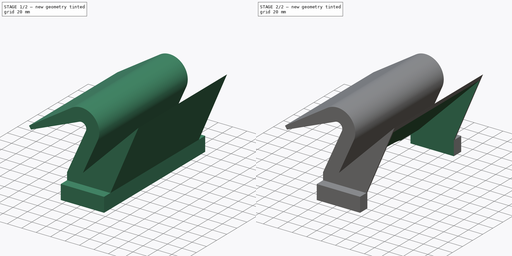
[diagram: build sequence overview — one tinted view per stage of 2, left to right]
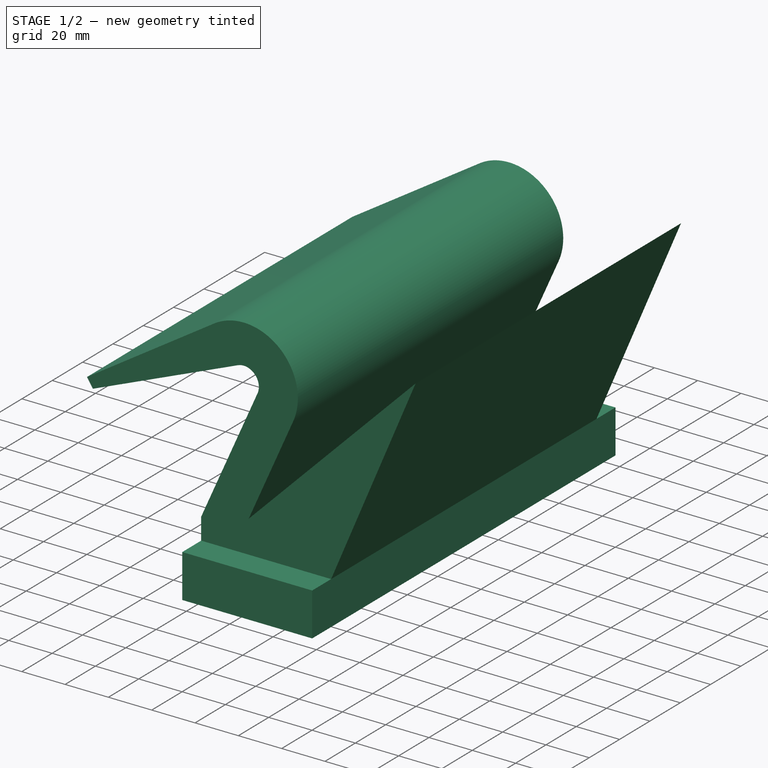
[diagram: stage 1 of 2 — iso view after this stage's code; geometry added in this stage tinted green]
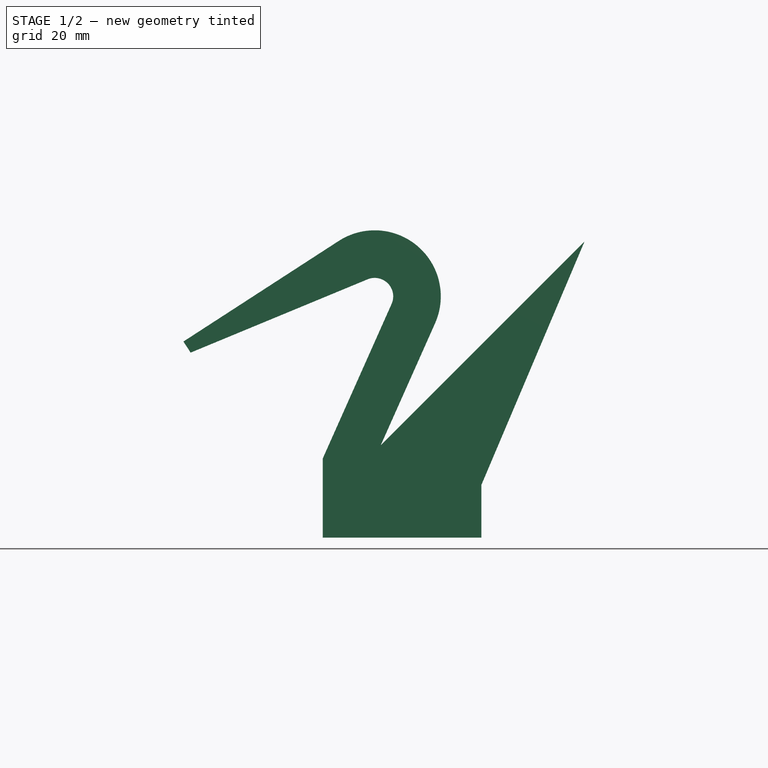
[diagram: stage 1 of 2 — front view after this stage's code; geometry added in this stage tinted green]
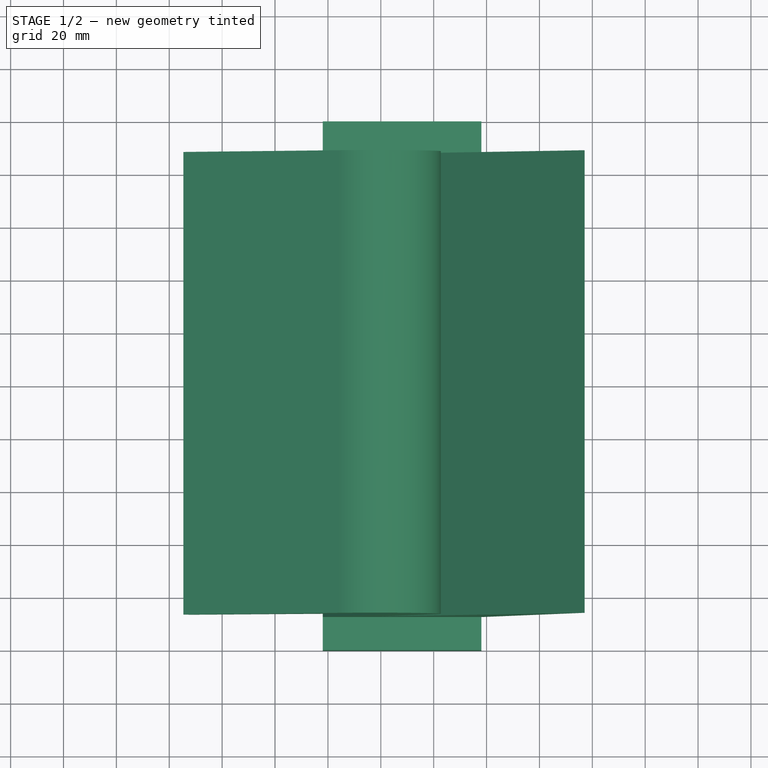
[diagram: stage 1 of 2 — top view after this stage's code; geometry added in this stage tinted green]
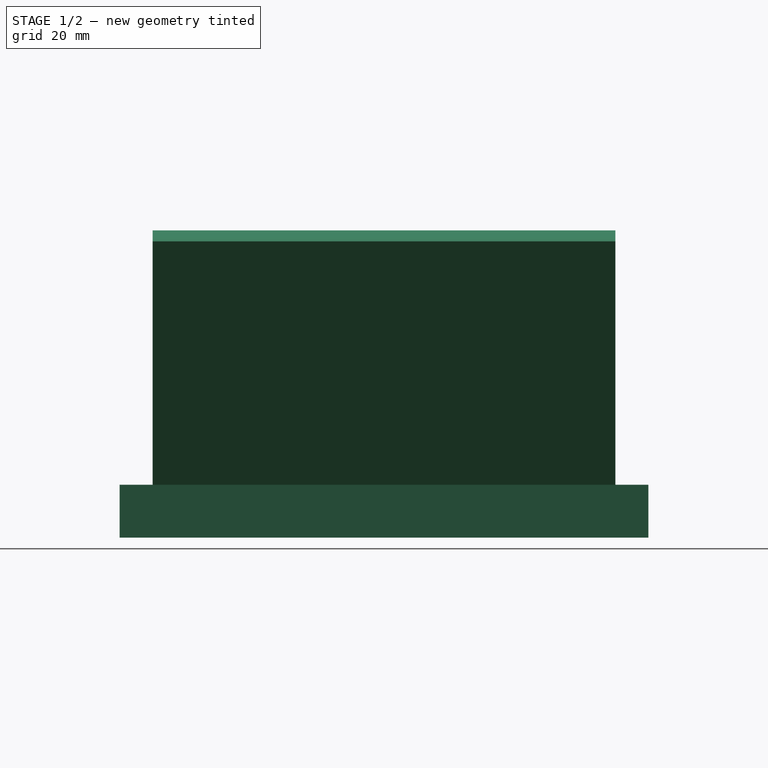
[diagram: stage 1 of 2 — right view after this stage's code; geometry added in this stage tinted green]
FCSTD DOCUMENT  (FreeCAD 0.18R16146 (Git))
Label: Mirror02
License: All rights reserved
LicenseURL: http://en.wikipedia.org/wiki/All_rights_reserved
objects: Sketcher::SketchObject×4, PartDesign::Plane×3, PartDesign::Pad×2, PartDesign::Pocket×2, PartDesign::Body×1, App::Part×1
note: 16 computed .brp shape members not serialized (recipe doc carries the construction recipe); baked Part::Feature solids carry a one-line shape summary decoded from their .brp

FEATURE [Sketcher::SketchObject] Sketch
  MapMode = 5
  Placement = pos=(0,0,0) rot=(1,0,0;1.5708rad)
  Support = -> [XZ_Plane001]
  sketch-geometry (12):
    g0: LineSegment StartX=77.0774 StartY=112.077 StartZ=0 EndX=0 EndY=35 EndZ=0
    g1: LineSegment StartX=0 StartY=35 StartZ=0 EndX=20.5311 EndY=81.091 EndZ=0
    g2: LineSegment StartX=-15.8952 StartY=112.247 StartZ=0 EndX=-74.6502 EndY=74.1968 EndZ=0
    g3: LineSegment StartX=77.0774 StartY=112.077 StartZ=0 EndX=38.0677 EndY=20 EndZ=0
    g4: LineSegment StartX=-74.6502 StartY=74.1968 StartZ=0 EndX=-71.9323 EndY=70 EndZ=0
    g5: LineSegment StartX=-71.9323 StartY=70 StartZ=0 EndX=-4.98448 EndY=97.7307 EndZ=0
    g6: ArcOfCircle CenterX=-2.3057 CenterY=91.2635 CenterZ=0 NormalX=0 NormalY=0 NormalZ=1 AngleXU=0 Radius=25 StartAngle=5.86412 EndAngle=8.42868
    g7: ArcOfCircle CenterX=-2.3057 CenterY=91.2635 CenterZ=0 NormalX=0 NormalY=0 NormalZ=1 AngleXU=0 Radius=7 StartAngle=5.86412 EndAngle=8.24668
    g8: LineSegment StartX=38.0677 StartY=20 StartZ=0 EndX=38.0677 EndY=0 EndZ=0
    g9: LineSegment StartX=38.0677 StartY=0 StartZ=0 EndX=-21.9323 EndY=0 EndZ=0
    g10: LineSegment StartX=-21.9323 StartY=0 StartZ=0 EndX=-21.9323 EndY=30 EndZ=0
    g11: LineSegment StartX=-21.9323 StartY=30 StartZ=0 EndX=4.0886 EndY=88.4152 EndZ=0
  constraints (34):
    c: Coincident(g0,g3)
    c: Coincident(g0,g1)
    c: Tangent(g1,g6) = -1.5708
    c: Tangent(g7,g5) = 1.5708
    c: Tangent(g2,g6) = -1.5708
    c: Coincident(g4,g5)
    c: Coincident(g4,g2)
    c: Perpendicular(g4,g2)
    c: Distance(g4) = 5
    c: Radius(g6) = 25
    c: Radius(g7) = 7
    c: Angle(g6,g-2) = 0.785398
    c: Distance(g2) = 70
    c: Coincident(g3,g8)
    c: PointOnObject(g8,g-1)
    c: Vertical(g8)
    c: Coincident(g8,g9)
    c: PointOnObject(g9,g-1)
    c: Coincident(g9,g10)
    c: Vertical(g10)
    c: Coincident(g10,g11)
    c: Tangent(g11,g7) = -1.5708
    c: DistanceX(g9,g9) = 60
    c: DistanceY(g10,g10) = 30
    c: DistanceY(g3,g0) = 15
    c: DistanceY(g8,g8) = 20
    c: Angle(g-1,g0) = 0.785398
    c: Distance(g3) = 100
    c: Parallel(g1,g11)
    c: Angle(g-1,g5) = 0.392699
    c: Coincident(g7,g6)
    c: DistanceX(g4,g9) = 50
    c: DistanceY(g3,g5) = 50
    c: PointOnObject(g0,g-2)
FEATURE [PartDesign::Plane] DatumPlane
  AttachmentOffset = pos=(0,0,-5) rot=(0,0,1;0rad)
  Length = 237.762
  MapMode = 5
  Placement = pos=(-10.3553,7e-15,10.3553) rot=(-0.382683,0,0.92388;3.14159rad)
  ResizeMode = 0
  Width = 239.796
FEATURE [PartDesign::Pad] Pad
  Length = 175
  Length2 = 100
  Midplane = true
  Placement = pos=(0,0,0) rot=(1,0,0;1.5708rad)
  Profile = -> Sketch
  Type = 0
FEATURE [PartDesign::Plane] DatumPlane001
  AttachmentOffset = pos=(0,0,-3) rot=(0,0,1;0rad)
  Length = 237.762
  MapMode = 5
  Placement = pos=(-15.3787,6.7e-15,15.3787) rot=(-0.382683,0,0.92388;3.14159rad)
  ResizeMode = 0
  Support = -> [Pad]
  Width = 239.796
FEATURE [Sketcher::SketchObject] Sketch001
  ExternalGeometry = -> [Pad]
  MapMode = 5
  Placement = pos=(-15.3787,6.7e-15,15.3787) rot=(-0.382683,0,0.92388;3.14159rad)
  Support = -> [DatumPlane001]
  sketch-geometry (4):
    g0: LineSegment StartX=-133.753 StartY=85.5 StartZ=0 EndX=15.5085 EndY=85.5 EndZ=0
    g1: LineSegment StartX=15.5085 StartY=85.5 StartZ=0 EndX=15.5085 EndY=-85.5 EndZ=0
    g2: LineSegment StartX=15.5085 StartY=-85.5 StartZ=0 EndX=-133.753 EndY=-85.5 EndZ=0
    g3: LineSegment StartX=-133.753 StartY=-85.5 StartZ=0 EndX=-133.753 EndY=85.5 EndZ=0
  constraints (11):
    c: Coincident(g0,g1)
    c: Coincident(g1,g2)
    c: Coincident(g2,g3)
    c: Coincident(g3,g0)
    c: Horizontal(g0)
    c: Horizontal(g2)
    c: Vertical(g1)
    c: PointOnObject(g0,g-5)
    c: PointOnObject(g0,g-6)
    c: DistanceY(g0,g-5) = 2
    c: Symmetric(g0,g2,g-1)
FEATURE [PartDesign::Plane] DatumPlane002
  Length = 181.708
  MapMode = 2
  Placement = pos=(0,0,0) rot=(1,0,0;1.5708rad)
  ResizeMode = 0
  Support = -> [XZ_Plane]
  Width = 153.976
FEATURE [Sketcher::SketchObject] Sketch002
  ExternalGeometry = -> [Pad]
  MapMode = 5
  Placement = pos=(0,0,0) rot=(1,0,0;1.5708rad)
  Support = -> [DatumPlane002]
  sketch-geometry (4):
    g0: LineSegment StartX=-21.9323 StartY=20 StartZ=0 EndX=38.0677 EndY=20 EndZ=0
    g1: LineSegment StartX=38.0677 StartY=20 StartZ=0 EndX=38.0677 EndY=8.999e-12 EndZ=0
    g2: LineSegment StartX=38.0677 StartY=9e-12 StartZ=0 EndX=-21.9323 EndY=9e-12 EndZ=0
    g3: LineSegment StartX=-21.9323 StartY=9e-12 StartZ=0 EndX=-21.9323 EndY=20 EndZ=0
  constraints (10):
    c: Coincident(g0,g1)
    c: Coincident(g1,g2)
    c: Coincident(g2,g3)
    c: Coincident(g3,g0)
    c: Horizontal(g0)
    c: Horizontal(g2)
    c: Vertical(g1)
    c: Vertical(g3)
    c: Coincident(g2,g-4)
    c: Coincident(g0,g-3)
FEATURE [PartDesign::Pad] Pad001
  BaseFeature = -> Pad
  Length = 200
  Length2 = 100
  Midplane = true
  Placement = pos=(0,0,0) rot=(1,0,0;1.5708rad)
  Profile = -> Sketch002
  Type = 0
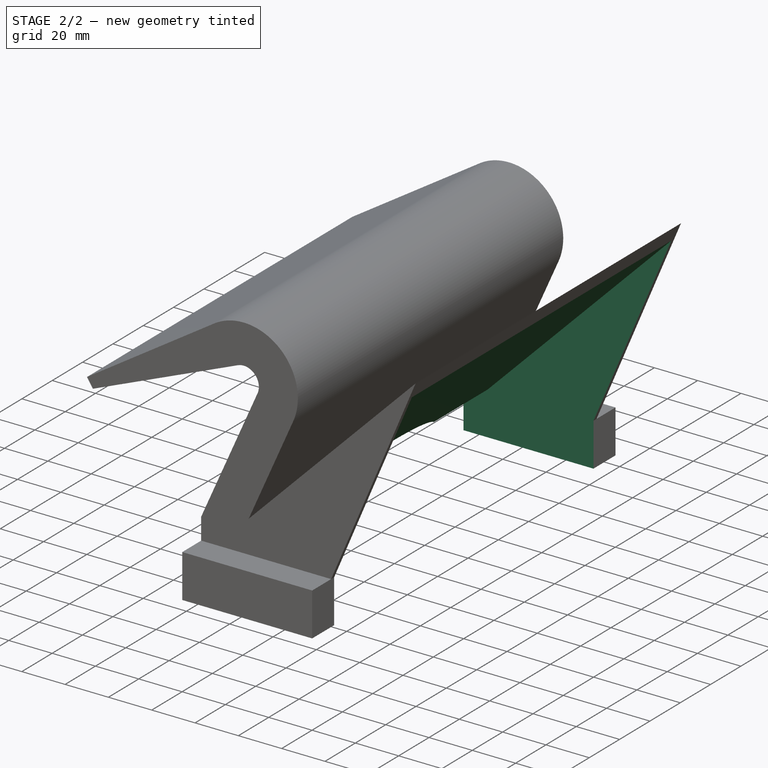
[diagram: stage 2 of 2 — iso view after this stage's code; geometry added in this stage tinted green]
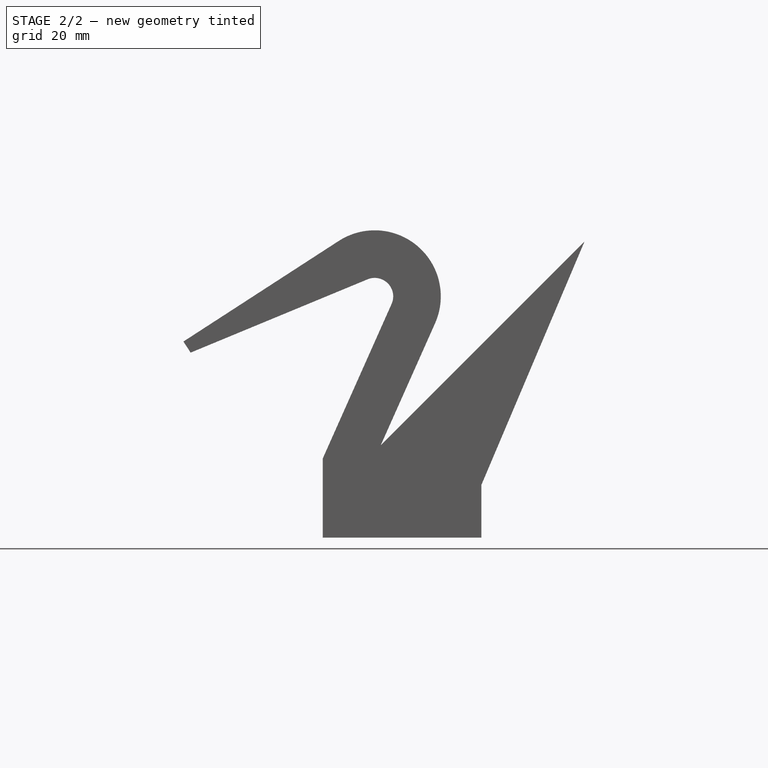
[diagram: stage 2 of 2 — front view after this stage's code; geometry added in this stage tinted green]
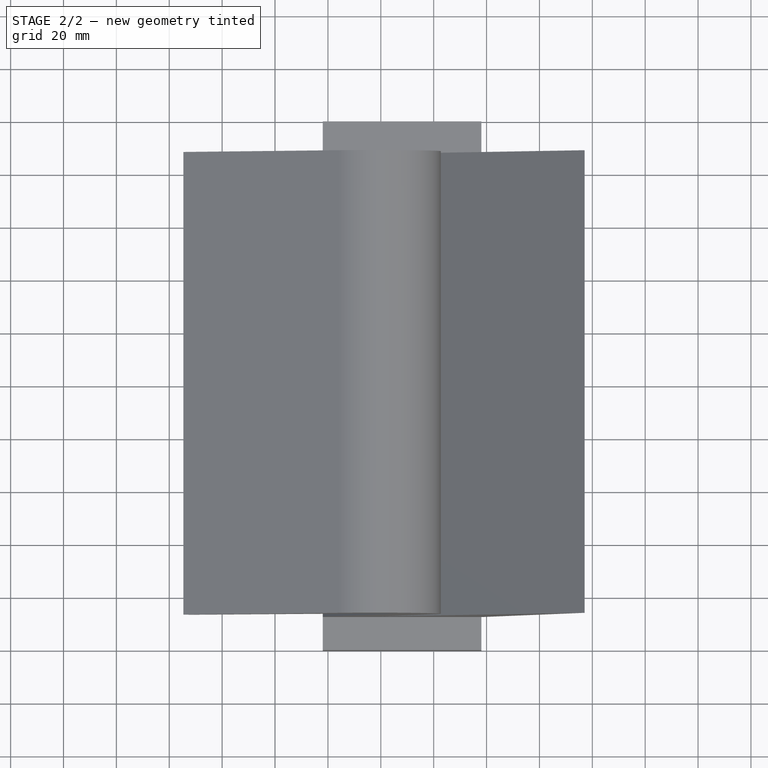
[diagram: stage 2 of 2 — top view after this stage's code; geometry added in this stage tinted green]
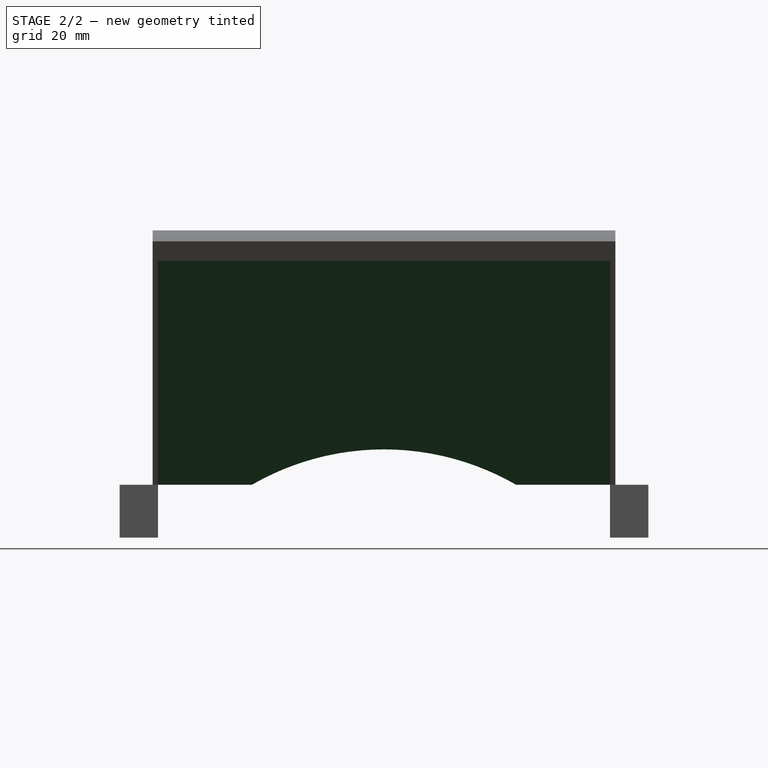
[diagram: stage 2 of 2 — right view after this stage's code; geometry added in this stage tinted green]
FEATURE [PartDesign::Pocket] Pocket
  BaseFeature = -> Pad001
  Length = 5
  Length2 = 100
  Placement = pos=(0,0,0) rot=(1,0,0;1.5708rad)
  Profile = -> Sketch001
  Type = 1
FEATURE [Sketcher::SketchObject] Sketch003
  ExternalGeometry = -> [Pocket]
  MapMode = 5
  Placement = pos=(0,0,0) rot=(0.57735,0.57735,0.57735;2.0944rad)
  Support = -> [YZ_Plane]
  sketch-geometry (6):
    g0: LineSegment StartX=-85.5 StartY=20 StartZ=0 EndX=-50 EndY=20 EndZ=0
    g1: LineSegment StartX=85.5 StartY=20 StartZ=0 EndX=85.5 EndY=4.9987e-12 EndZ=0
    g2: LineSegment StartX=85.5 StartY=4.9987e-12 StartZ=0 EndX=-85.5 EndY=4.9987e-12 EndZ=0
    g3: LineSegment StartX=-85.5 StartY=4.9987e-12 StartZ=0 EndX=-85.5 EndY=20 EndZ=0
    g4: ArcOfCircle CenterX=0 CenterY=-66.6025 CenterZ=0 NormalX=0 NormalY=0 NormalZ=1 AngleXU=0 Radius=100 StartAngle=1.0472 EndAngle=2.0944
    g5: LineSegment StartX=50 StartY=20 StartZ=0 EndX=85.5 EndY=20 EndZ=0
  constraints (16):
    c: Coincident(g5,g1)
    c: Coincident(g1,g2)
    c: Coincident(g2,g3)
    c: Coincident(g3,g0)
    c: Horizontal(g0)
    c: Horizontal(g2)
    c: Vertical(g1)
    c: Vertical(g3)
    c: Radius(g4) = 100
    c: Coincident(g0,g4)
    c: Coincident(g5,g4)
    c: Tangent(g0,g5)
    c: PointOnObject(g4,g-2)
    c: DistanceX(g0,g4) = 100
    c: Coincident(g1,g-4)
    c: Coincident(g-3,g0)
FEATURE [PartDesign::Pocket] Pocket001
  BaseFeature = -> Pocket
  Length = 5
  Length2 = 100
  Midplane = true
  Placement = pos=(0,0,0) rot=(1,0,0;1.5708rad)
  Profile = -> Sketch003
  Type = 1
FEATURE [PartDesign::Body] Body
  Group = -> [Sketch,DatumPlane,Pad,DatumPlane001,Sketch001,DatumPlane002,Sketch002,Pad001,Pocket,Sketch003,Pocket001]
  Origin = -> Origin
  Tip = -> Pocket001
FEATURE [App::Part] Part
  Group = -> [Body]
  License = CC BY 3.0
  LicenseURL = http://creativecommons.org/licenses/by/3.0/
  Origin = -> Origin001
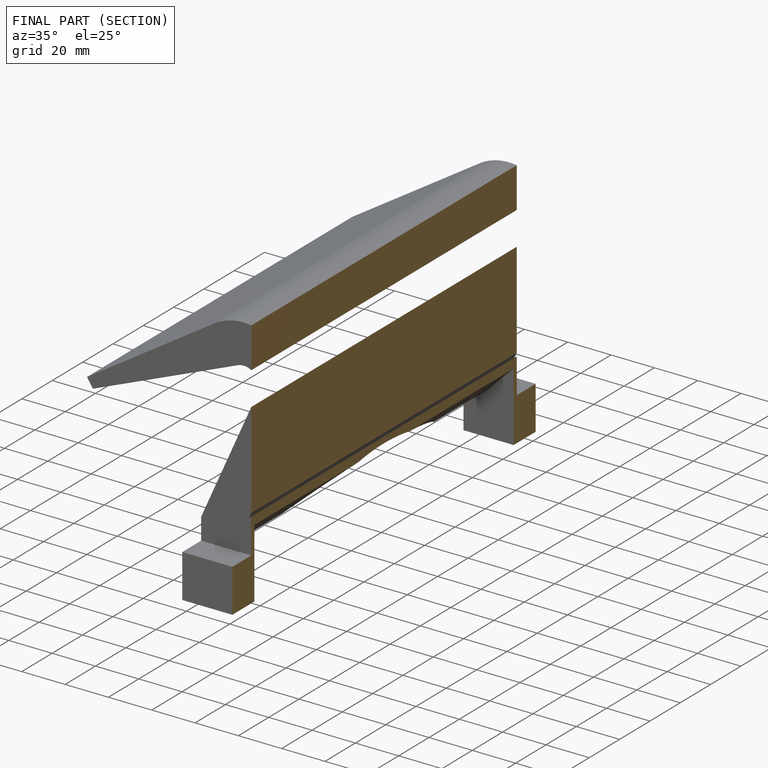
[diagram: finished part — half-section view (interior)]
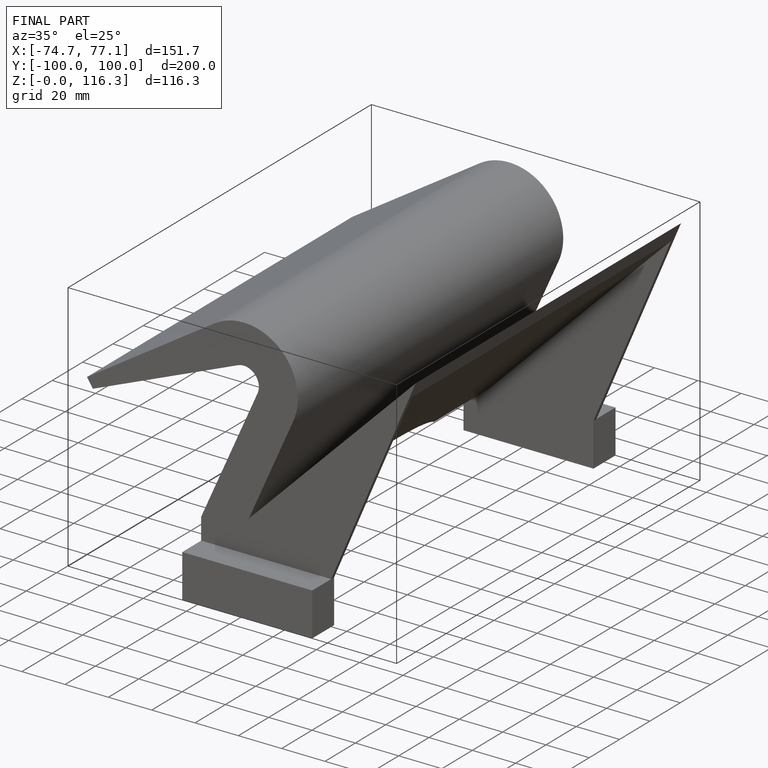
[diagram: finished part — iso view with bounding-box wireframe]
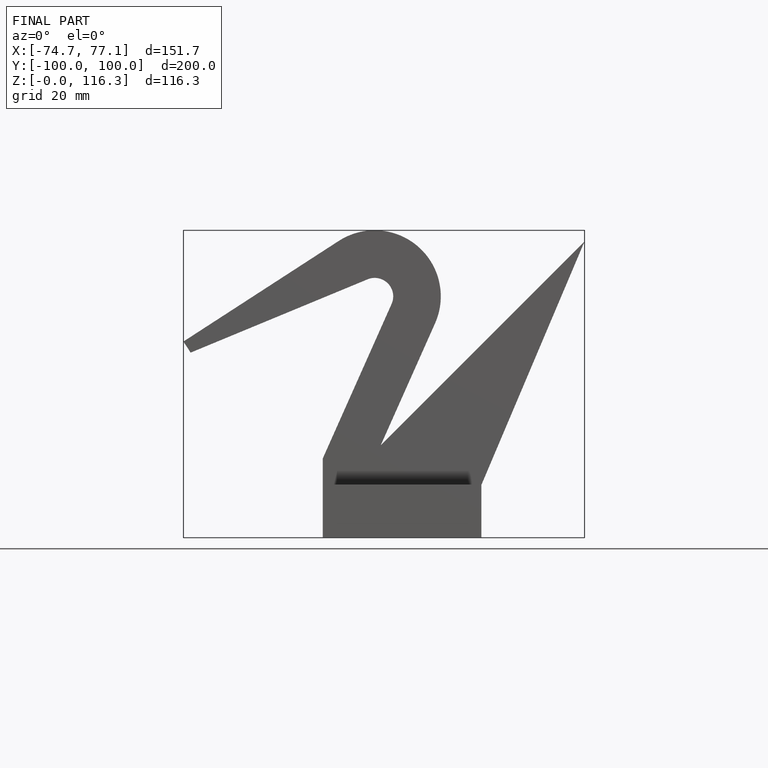
[diagram: finished part — front view with bounding-box wireframe]
